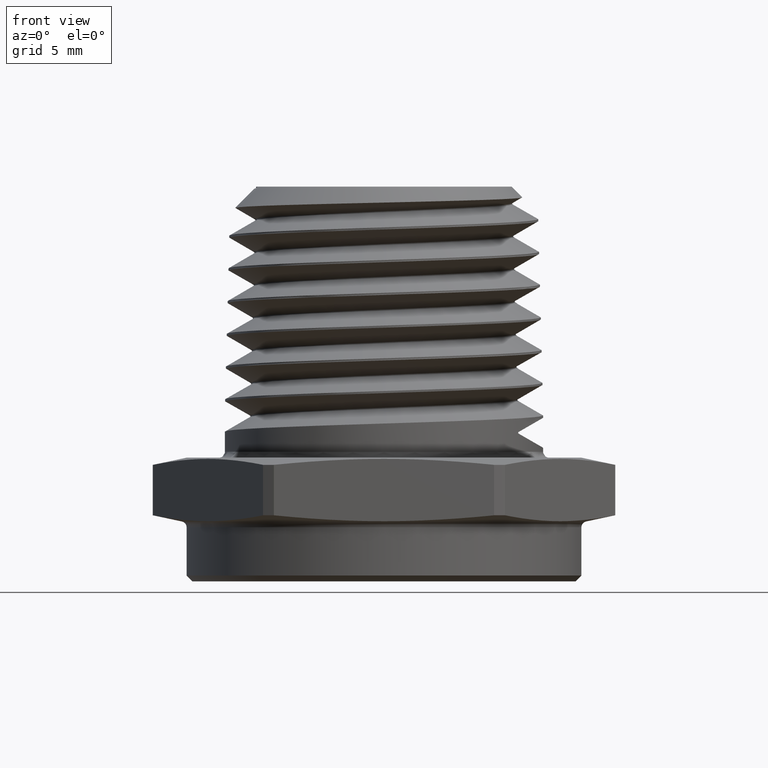
[diagram: clean part render]
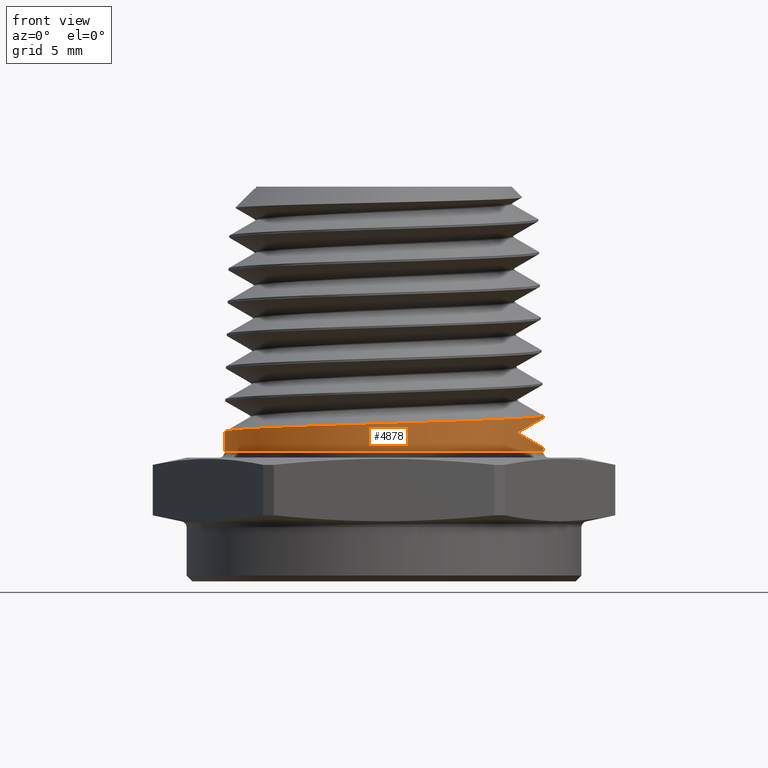
[diagram: same view with one face highlighted and labeled with its STEP entity id]
A machine part, front view. The second image highlights one B-rep face of the part: STEP entity #4878.
In plain terms, the highlighted cylindrical surface (partial cylindrical patch) has radius 6.858 mm, axis along (-0, -0, -1).
Its self-contained STEP definition (entity closure, byte-faithful):
#716 = AXIS2_PLACEMENT_3D ( 'NONE', #4440, #4441, #4442 ) ;
#752 = AXIS2_PLACEMENT_3D ( 'NONE', #3456, #3457, #3455 ) ;
#1632 = B_SPLINE_CURVE_WITH_KNOTS ( 'NONE', 3,
 ( #2980, #2979, #2997, #2998, #2999, #3000, #3001, #3002, #3003, #3004, #3005, #3006, #3007, #3008, #3009, #3010, #3011, #3012, #3013, #3014, #3015, #3016, #3017, #3018, #3019, #3020, #3021, #3022, #3023, #3024, #3025, #3026, #3027, #3028, #3029, #3030, #3031, #3032, #3033, #3034, #3035, #3036, #3037, #3038 ),
 .UNSPECIFIED., .F., .F.,
 ( 4, 2, 2, 2, 2, 2, 2, 2, 2, 2, 2, 2, 2, 2, 2, 2, 2, 2, 2, 2, 2, 4 ),
 ( 0.02144630403419212400, 0.02211680131704163800, 0.02278729859989114800, 0.02412829316559017200, 0.02546928773128919600, 0.02681028229698822000, 0.02748077957983773000, 0.02815127686268724400, 0.02949227142838626400, 0.03083326599408529200, 0.03150376327693479900, 0.03217426055978431200, 0.03351525512548333300, 0.03485624969118235300, 0.03619724425688138100, 0.03686774153973088700, 0.03753823882258039400, 0.03820873610542990800, 0.03887923338827941500, 0.04022022795397843500, 0.04156122251967744900, 0.04290221708537646900 ),
 .UNSPECIFIED. ) ;
#1633 =( BOUNDED_CURVE ( )  B_SPLINE_CURVE ( 3, ( #2996, #2995, #3042, #3043 ),
 .UNSPECIFIED., .F., .F. ) 
 B_SPLINE_CURVE_WITH_KNOTS ( ( 4, 4 ),
 ( 0.0000000000000000000, 0.5659172060434634100 ),
 .UNSPECIFIED. ) 
 CURVE ( )  GEOMETRIC_REPRESENTATION_ITEM ( )  RATIONAL_B_SPLINE_CURVE ( ( 1.000000000000000000, 0.9734890710874442000, 0.9734890710874442000, 1.000000000000000000 ) ) 
 REPRESENTATION_ITEM ( '' )  );
#1634 =( BOUNDED_CURVE ( )  B_SPLINE_CURVE ( 3, ( #3039, #3041, #3048, #3049 ),
 .UNSPECIFIED., .F., .F. ) 
 B_SPLINE_CURVE_WITH_KNOTS ( ( 4, 4 ),
 ( 2.575675447546196900, 3.141592653589793100 ),
 .UNSPECIFIED. ) 
 CURVE ( )  GEOMETRIC_REPRESENTATION_ITEM ( )  RATIONAL_B_SPLINE_CURVE ( ( 1.000000000000000000, 0.9734890710874317700, 0.9734890710874317700, 1.000000000000000000 ) ) 
 REPRESENTATION_ITEM ( '' )  );
#1660 = EDGE_CURVE ( 'NONE', #1845, #1865, #2566, .T. ) ;
#1664 = EDGE_CURVE ( 'NONE', #1866, #1848, #2571, .T. ) ;
#1666 = EDGE_CURVE ( 'NONE', #1878, #1850, #2573, .T. ) ;
#1706 = EDGE_CURVE ( 'NONE', #1878, #1845, #1632, .T. ) ;
#1707 = EDGE_CURVE ( 'NONE', #1866, #2542, #1633, .T. ) ;
#1708 = EDGE_CURVE ( 'NONE', #2542, #2528, #2597, .T. ) ;
#1709 = EDGE_CURVE ( 'NONE', #2528, #1865, #1634, .T. ) ;
#1776 = EDGE_CURVE ( 'NONE', #1850, #1848, #2677, .T. ) ;
#1845 = VERTEX_POINT ( 'NONE', #4539 ) ;
#1848 = VERTEX_POINT ( 'NONE', #4542 ) ;
#1850 = VERTEX_POINT ( 'NONE', #4544 ) ;
#1865 = VERTEX_POINT ( 'NONE', #4559 ) ;
#1866 = VERTEX_POINT ( 'NONE', #4560 ) ;
#1878 = VERTEX_POINT ( 'NONE', #4572 ) ;
#1982 = ORIENTED_EDGE ( 'NONE', *, *, #1709, .T. ) ;
#1984 = ORIENTED_EDGE ( 'NONE', *, *, #1708, .T. ) ;
#1986 = ORIENTED_EDGE ( 'NONE', *, *, #1707, .T. ) ;
#1989 = ORIENTED_EDGE ( 'NONE', *, *, #1664, .F. ) ;
#1991 = ORIENTED_EDGE ( 'NONE', *, *, #1776, .T. ) ;
#1993 = ORIENTED_EDGE ( 'NONE', *, *, #1666, .T. ) ;
#1995 = ORIENTED_EDGE ( 'NONE', *, *, #1706, .F. ) ;
#1997 = ORIENTED_EDGE ( 'NONE', *, *, #1660, .F. ) ;
#2528 = VERTEX_POINT ( 'NONE', #3374 ) ;
#2542 = VERTEX_POINT ( 'NONE', #3388 ) ;
#2566 = LINE ( 'NONE', #5105, #2569 ) ;
#2567 = VECTOR ( 'NONE', #4801, 39.37007874015748100 ) ;
#2569 = VECTOR ( 'NONE', #5077, 39.37007874015748100 ) ;
#2571 = LINE ( 'NONE', #4803, #2567 ) ;
#2573 = LINE ( 'NONE', #4802, #2575 ) ;
#2575 = VECTOR ( 'NONE', #4823, 39.37007874015748100 ) ;
#2597 = LINE ( 'NONE', #3040, #2598 ) ;
#2598 = VECTOR ( 'NONE', #3044, 39.37007874015748100 ) ;
#2677 = CIRCLE ( 'NONE', #716, 0.2700000000000000200 ) ;
#2731 = FACE_OUTER_BOUND ( 'NONE', #4625, .T. ) ;
#2979 = CARTESIAN_POINT ( 'NONE',  ( -0.2699999999999838100, -0.008794953315735133700, 0.1545036891527855100 ) ) ;
#2980 = CARTESIAN_POINT ( 'NONE',  ( -0.2699999999999999600, -5.001928457193992400E-013, 0.1542199171673591700 ) ) ;
#2995 = CARTESIAN_POINT ( 'NONE',  ( 0.2700000000000001300, -0.05162421279186724100, 0.1268515041418106800 ) ) ;
#2996 = CARTESIAN_POINT ( 'NONE',  ( 0.2699999999999999600, 3.967855629237423000E-016, 0.1268515041418107600 ) ) ;
#2997 = CARTESIAN_POINT ( 'NONE',  ( -0.2695713126894183100, -0.01759385642360308800, 0.1547846422497659900 ) ) ;
#2998 = CARTESIAN_POINT ( 'NONE',  ( -0.2678418189951953800, -0.03519938076579547100, 0.1553505993778437300 ) ) ;
#2999 = CARTESIAN_POINT ( 'NONE',  ( -0.2665294096649351000, -0.04405426786653916100, 0.1556372229051654100 ) ) ;
#3000 = CARTESIAN_POINT ( 'NONE',  ( -0.2613292069411589600, -0.07015600141033596900, 0.1564959394442890800 ) ) ;
#3001 = CARTESIAN_POINT ( 'NONE',  ( -0.2562085427529516800, -0.08699327844752335900, 0.1570706403780921200 ) ) ;
#3002 = CARTESIAN_POINT ( 'NONE',  ( -0.2427248556651685800, -0.1195629219990984700, 0.1582080544948097400 ) ) ;
#3003 = CARTESIAN_POINT ( 'NONE',  ( -0.2342460099016525100, -0.1354252936150574800, 0.1587759993442193500 ) ) ;
#3004 = CARTESIAN_POINT ( 'NONE',  ( -0.2146332560954790900, -0.1647536606070471300, 0.1599143710891872400 ) ) ;
#3005 = CARTESIAN_POINT ( 'NONE',  ( -0.2034766960379937900, -0.1783565024307195700, 0.1604888792832840100 ) ) ;
#3006 = CARTESIAN_POINT ( 'NONE',  ( -0.1846908465977699400, -0.1971490378633973800, 0.1613462659691343400 ) ) ;
#3007 = CARTESIAN_POINT ( 'NONE',  ( -0.1780526666197642700, -0.2031642470530242700, 0.1616319531629924800 ) ) ;
#3008 = CARTESIAN_POINT ( 'NONE',  ( -0.1643536124831822500, -0.2143976525868675200, 0.1621987406835217200 ) ) ;
#3009 = CARTESIAN_POINT ( 'NONE',  ( -0.1572687625205452500, -0.2196449807791965600, 0.1624810564436784700 ) ) ;
#3010 = CARTESIAN_POINT ( 'NONE',  ( -0.1353229990580760400, -0.2343015384304528700, 0.1633325145711722900 ) ) ;
#3011 = CARTESIAN_POINT ( 'NONE',  ( -0.1197462156351845700, -0.2426490697059968700, 0.1639096354386823700 ) ) ;
#3012 = CARTESIAN_POINT ( 'NONE',  ( -0.08680748156477127700, -0.2562853650377167100, 0.1650598386590417500 ) ) ;
#3013 = CARTESIAN_POINT ( 'NONE',  ( -0.06993436903124193600, -0.2613788557705513100, 0.1656161909145366700 ) ) ;
#3014 = CARTESIAN_POINT ( 'NONE',  ( -0.04404320137689161200, -0.2665288482817662600, 0.1664678984822139700 ) ) ;
#3015 = CARTESIAN_POINT ( 'NONE',  ( -0.03531516416299352500, -0.2678274284267265800, 0.1667540584754176000 ) ) ;
#3016 = CARTESIAN_POINT ( 'NONE',  ( -0.01765901179647339300, -0.2695678978289226000, 0.1673313463629129100 ) ) ;
#3017 = CARTESIAN_POINT ( 'NONE',  ( -0.008717651430961257900, -0.2700041602211422600, 0.1676228758266191900 ) ) ;
#3018 = CARTESIAN_POINT ( 'NONE',  ( 0.01781903432141308100, -0.2699915886627515800, 0.1684789999499088600 ) ) ;
#3019 = CARTESIAN_POINT ( 'NONE',  ( 0.03532407146534299900, -0.2682610895868287000, 0.1690342919854317900 ) ) ;
#3020 = CARTESIAN_POINT ( 'NONE',  ( 0.06996214507352345500, -0.2613754014208537500, 0.1701736929657151300 ) ) ;
#3021 = CARTESIAN_POINT ( 'NONE',  ( 0.08716127382253365000, -0.2561506209985688900, 0.1707606480680825500 ) ) ;
#3022 = CARTESIAN_POINT ( 'NONE',  ( 0.1197006507650242400, -0.2426560992407751400, 0.1718971371042666300 ) ) ;
#3023 = CARTESIAN_POINT ( 'NONE',  ( 0.1352342274958922800, -0.2343662634558892300, 0.1724529477603488300 ) ) ;
#3024 = CARTESIAN_POINT ( 'NONE',  ( 0.1573990173870118400, -0.2195552544549427600, 0.1733130309303056700 ) ) ;
#3025 = CARTESIAN_POINT ( 'NONE',  ( 0.1645715970072503500, -0.2142294061205553000, 0.1736027718416454600 ) ) ;
#3026 = CARTESIAN_POINT ( 'NONE',  ( 0.1782239742318965100, -0.2030129650964954100, 0.1741777054676412800 ) ) ;
#3027 = CARTESIAN_POINT ( 'NONE',  ( 0.1847436577773732000, -0.1970967437169831600, 0.1744644049361008800 ) ) ;
#3028 = CARTESIAN_POINT ( 'NONE',  ( 0.1971783899747737400, -0.1846565135589790500, 0.1750318998008236500 ) ) ;
#3029 = CARTESIAN_POINT ( 'NONE',  ( 0.2030934343928166600, -0.1781325031214410500, 0.1753127516604415800 ) ) ;
#3030 = CARTESIAN_POINT ( 'NONE',  ( 0.2143094234644698500, -0.1644676344333621800, 0.1758783329937355900 ) ) ;
#3031 = CARTESIAN_POINT ( 'NONE',  ( 0.2196370295960179400, -0.1572845135513334100, 0.1761646899018147700 ) ) ;
#3032 = CARTESIAN_POINT ( 'NONE',  ( 0.2344260221439847000, -0.1351288719449489900, 0.1770241763451939300 ) ) ;
#3033 = CARTESIAN_POINT ( 'NONE',  ( 0.2427080019163846400, -0.1195961187373639500, 0.1775990222788824700 ) ) ;
#3034 = CARTESIAN_POINT ( 'NONE',  ( 0.2561917384781795000, -0.08704136342460096200, 0.1787359389610083900 ) ) ;
#3035 = CARTESIAN_POINT ( 'NONE',  ( 0.2614093399096282800, -0.06983323064915050700, 0.1793037517384225800 ) ) ;
#3036 = CARTESIAN_POINT ( 'NONE',  ( 0.2682758964619657000, -0.03520747750711120800, 0.1804427345998395900 ) ) ;
#3037 = CARTESIAN_POINT ( 'NONE',  ( 0.2700000000000001800, -0.01770134612981881500, 0.1810171905908745700 ) ) ;
#3038 = CARTESIAN_POINT ( 'NONE',  ( 0.2699999999999999600, 4.631336051758946200E-016, 0.1815883301928805600 ) ) ;
#3039 = CARTESIAN_POINT ( 'NONE',  ( 0.2279062328241047400, -0.1447713681635192900, 0.1532674539372531300 ) ) ;
#3040 = CARTESIAN_POINT ( 'NONE',  ( 0.2279062328240777900, -0.1447713681635193200, 0.5700000000000147200 ) ) ;
#3041 = CARTESIAN_POINT ( 'NONE',  ( 0.2555866325138799200, -0.1011955168305205400, 0.1692487401494211800 ) ) ;
#3042 = CARTESIAN_POINT ( 'NONE',  ( 0.2555866325138868600, -0.1011955168304971300, 0.1351730657398471900 ) ) ;
#3043 = CARTESIAN_POINT ( 'NONE',  ( 0.2279062328241048800, -0.1447713681634768300, 0.1511543519520193400 ) ) ;
#3044 = DIRECTION ( 'NONE',  ( 0.0000000000000000000, 0.0000000000000000000, 1.000000000000000000 ) ) ;
#3048 = CARTESIAN_POINT ( 'NONE',  ( 0.2700000000000000700, -0.05162421279187971000, 0.1775703017474616300 ) ) ;
#3049 = CARTESIAN_POINT ( 'NONE',  ( 0.2700000000000000700, 3.967855629237423500E-016, 0.1775703017474617200 ) ) ;
#3374 = CARTESIAN_POINT ( 'NONE',  ( 0.2279062328241047400, -0.1447713681635192900, 0.1532674539372531300 ) ) ;
#3388 = CARTESIAN_POINT ( 'NONE',  ( 0.2279062328241048800, -0.1447713681634768300, 0.1511543519520193400 ) ) ;
#3455 = DIRECTION ( 'NONE',  ( -1.000000000000000000, 0.0000000000000000000, 0.0000000000000000000 ) ) ;
#3456 = CARTESIAN_POINT ( 'NONE',  ( 0.0000000000000000000, 0.0000000000000000000, 0.5699999999999999500 ) ) ;
#3457 = DIRECTION ( 'NONE',  ( -0.0000000000000000000, -0.0000000000000000000, -1.000000000000000000 ) ) ;
#4440 = CARTESIAN_POINT ( 'NONE',  ( 0.0000000000000000000, 0.0000000000000000000, 0.1200000000000000200 ) ) ;
#4441 = DIRECTION ( 'NONE',  ( -0.0000000000000000000, 0.0000000000000000000, 1.000000000000000000 ) ) ;
#4442 = DIRECTION ( 'NONE',  ( 1.000000000000000000, 0.0000000000000000000, 0.0000000000000000000 ) ) ;
#4539 = CARTESIAN_POINT ( 'NONE',  ( 0.2699999999999999600, 4.631336051758946200E-016, 0.1815883301928805600 ) ) ;
#4542 = CARTESIAN_POINT ( 'NONE',  ( 0.2700000000000000200, 3.306546357697853700E-017, 0.1200000000000000200 ) ) ;
#4544 = CARTESIAN_POINT ( 'NONE',  ( -0.2700000000000000200, 0.0000000000000000000, 0.1200000000000000200 ) ) ;
#4559 = CARTESIAN_POINT ( 'NONE',  ( 0.2700000000000000700, 3.967855629237423500E-016, 0.1775703017474617200 ) ) ;
#4560 = CARTESIAN_POINT ( 'NONE',  ( 0.2699999999999999600, 3.967855629237423000E-016, 0.1268515041418107600 ) ) ;
#4572 = CARTESIAN_POINT ( 'NONE',  ( -0.2699999999999999600, -5.001928457193992400E-013, 0.1542199171673591700 ) ) ;
#4625 = EDGE_LOOP ( 'NONE', ( #1997, #1995, #1993, #1991, #1989, #1986, #1984, #1982 ) ) ;
#4801 = DIRECTION ( 'NONE',  ( -0.0000000000000000000, -0.0000000000000000000, -1.000000000000000000 ) ) ;
#4802 = CARTESIAN_POINT ( 'NONE',  ( -0.2700000000000000200, 0.0000000000000000000, 0.5699999999999999500 ) ) ;
#4803 = CARTESIAN_POINT ( 'NONE',  ( 0.2700000000000000200, 3.306546357697853700E-017, 0.5699999999999999500 ) ) ;
#4823 = DIRECTION ( 'NONE',  ( -0.0000000000000000000, -0.0000000000000000000, -1.000000000000000000 ) ) ;
#4878 = ADVANCED_FACE ( 'NONE', ( #2731 ), #5203, .T. ) ;
#5077 = DIRECTION ( 'NONE',  ( -0.0000000000000000000, -0.0000000000000000000, -1.000000000000000000 ) ) ;
#5105 = CARTESIAN_POINT ( 'NONE',  ( 0.2700000000000000200, 3.306546357697853700E-017, 0.5699999999999999500 ) ) ;
#5203 = CYLINDRICAL_SURFACE ( 'NONE', #752, 0.2700000000000000200 ) ;